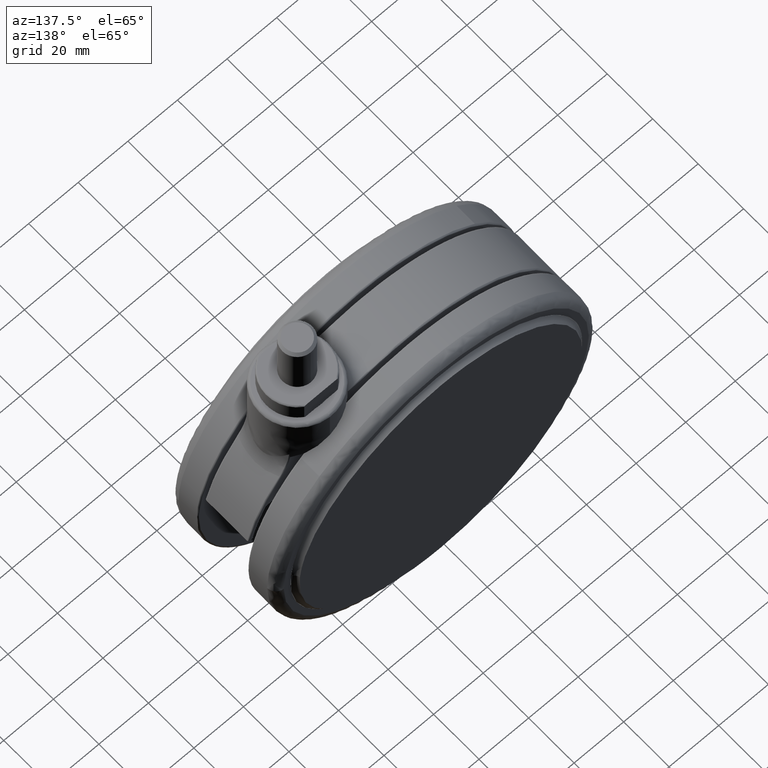
[diagram: clean part render]
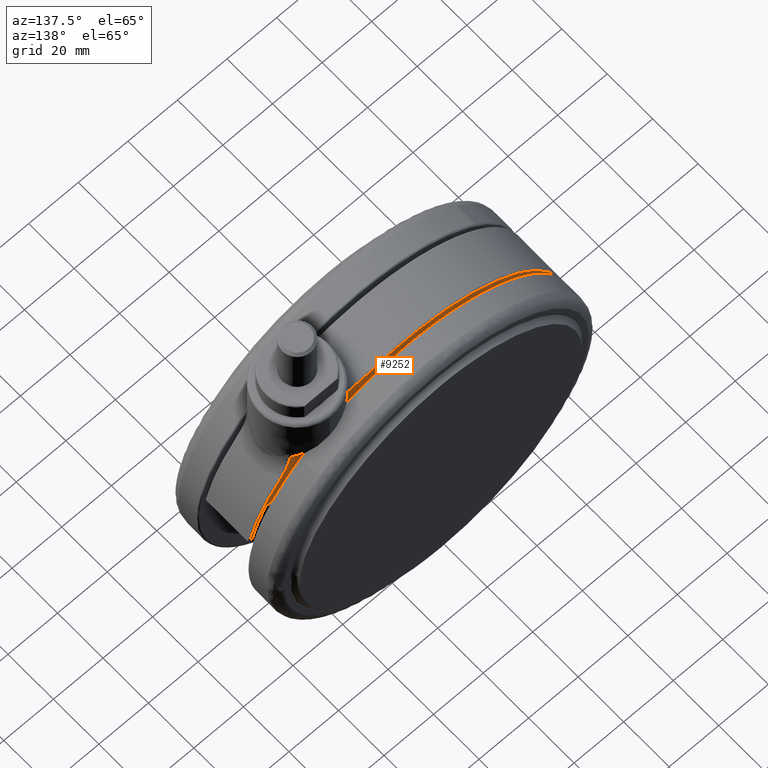
[diagram: same view with one face highlighted and labeled with its STEP entity id]
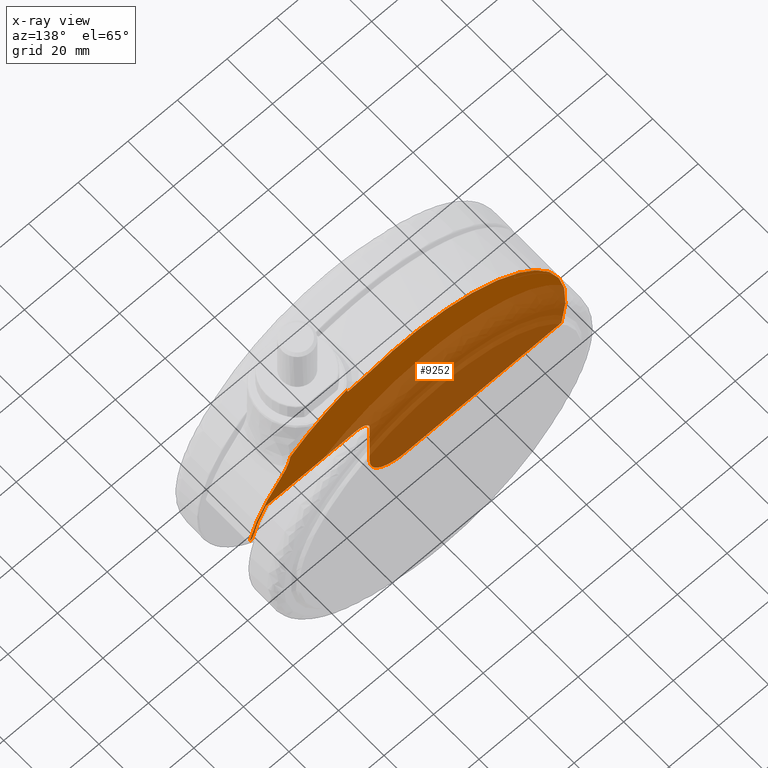
[diagram: x-ray of the same camera — body ghosted, the highlighted face saturated]
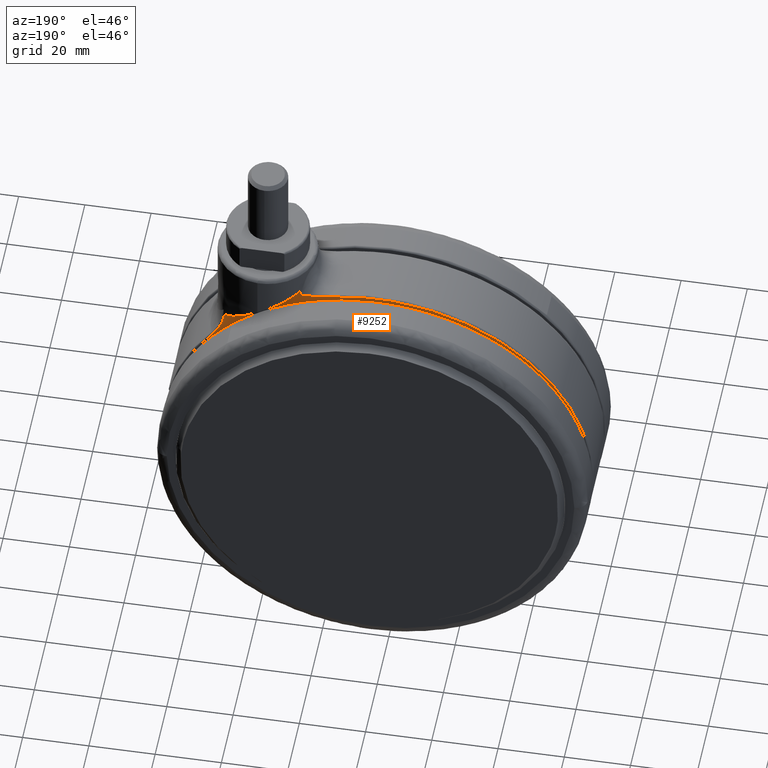
[diagram: same view with one face highlighted and labeled with its STEP entity id]
A machine part, auxiliary view. The second image highlights one B-rep face of the part: STEP entity #9252.
The next image is the same camera in x-ray: the body ghosted, the highlighted face saturated — about 63% of this face is hidden behind the body in this view.
A second angle (auxiliary view) of the same face is appended — the face is thin or edge-on in the first view.
In plain terms, the highlighted face is a freeform B-spline surface patch.
Its self-contained STEP definition (entity closure, byte-faithful):
#7321=CARTESIAN_POINT('',(15.158474518267701,9.500000000000000,-30.949076040115798));
#7322=VERTEX_POINT('',#7321);
#7353=CARTESIAN_POINT('',(27.917485645884000,9.500000000000000,-57.299999999999997));
#7354=VERTEX_POINT('',#7353);
#7368=CARTESIAN_POINT('',(15.158474518267701,9.500000000000000,-30.949076040115798));
#7369=CARTESIAN_POINT('',(24.608355042993942,9.500000000000000,-42.637874844529520));
#7370=CARTESIAN_POINT('',(27.917485645883851,9.500000000000000,-57.300000000000033));
#7378=(BOUNDED_CURVE()B_SPLINE_CURVE(2,(#7368,#7369,#7370),.UNSPECIFIED.,.F.,.U.)CURVE()GEOMETRIC_REPRESENTATION_ITEM()QUASI_UNIFORM_CURVE()RATIONAL_B_SPLINE_CURVE((1.0,0.973904955536458,1.0))REPRESENTATION_ITEM(''));
#7379=EDGE_CURVE('',#7322,#7354,#7378,.T.);
#7501=CARTESIAN_POINT('',(11.471369592054179,9.499999999999821,-21.856370138927851));
#7502=VERTEX_POINT('',#7501);
#7503=CARTESIAN_POINT('',(11.471369592054179,9.499999999999821,-21.856370138927851));
#7504=CARTESIAN_POINT('',(11.518052940971790,9.500000000000002,-22.270704886614080));
#7505=CARTESIAN_POINT('',(11.579497155872350,9.500000000000002,-22.681474332693998));
#7506=CARTESIAN_POINT('',(11.729355376385120,9.500000000000000,-23.496499010968339));
#7507=CARTESIAN_POINT('',(11.817787213753631,9.500000000000000,-23.900749936126282));
#7508=CARTESIAN_POINT('',(12.020733121773929,9.500000000000004,-24.702951950895379));
#7509=CARTESIAN_POINT('',(12.135255648843071,9.499999999999998,-25.100900997965230));
#7510=CARTESIAN_POINT('',(12.326854776433571,9.499999999999998,-25.693038423036960));
#7511=CARTESIAN_POINT('',(12.394032596471940,9.499999999999998,-25.889617727018180));
#7512=CARTESIAN_POINT('',(12.535153737740661,9.500000000000004,-26.281142213222811));
#7513=CARTESIAN_POINT('',(12.609142064457190,9.500000000000002,-26.476166219632610));
#7514=CARTESIAN_POINT('',(12.994003994199860,9.500000000000002,-27.441108569209788));
#7515=CARTESIAN_POINT('',(13.350863923370200,9.500000000000002,-28.185498853078698));
#7516=CARTESIAN_POINT('',(13.965618865448899,9.500000000000004,-29.257356379462621));
#7517=CARTESIAN_POINT('',(14.183860921824779,9.500000000000000,-29.607142786049049));
#7518=CARTESIAN_POINT('',(14.648991593427970,9.499999999999998,-30.290591524171820));
#7519=CARTESIAN_POINT('',(14.895873224664919,9.500000000000002,-30.624257786734749));
#7520=CARTESIAN_POINT('',(15.158474518267649,9.500000000000000,-30.949076040115798));
#7521=B_SPLINE_CURVE_WITH_KNOTS('',3,(#7503,#7504,#7505,#7506,#7507,#7508,#7509,#7510,#7511,#7512,#7513,#7514,#7515,#7516,#7517,#7518,#7519,#7520),.UNSPECIFIED.,.F.,.U.,(4,2,2,2,2,2,2,2,4),(0.0,0.125000000000000,0.249999999999999,0.374999999999999,0.437499999999999,0.499999999999999,0.749999999999999,0.874999999999999,1.0),.UNSPECIFIED.);
#7522=EDGE_CURVE('',#7502,#7322,#7521,.T.);
#7774=CARTESIAN_POINT('',(-20.500000000000000,9.500000000000000,-71.500000000000000));
#7775=VERTEX_POINT('',#7774);
#7789=CARTESIAN_POINT('',(-20.500000000000000,9.500000000000000,-47.799999999999997));
#7790=VERTEX_POINT('',#7789);
#7791=CARTESIAN_POINT('',(-20.500000000000000,9.500000000000000,-47.799999999999997));
#7792=CARTESIAN_POINT('',(-20.500000000000000,9.500000000000000,-71.500000000000000));
#7793=QUASI_UNIFORM_CURVE('',1,(#7791,#7792),.UNSPECIFIED.,.F.,.U.);
#7794=EDGE_CURVE('',#7790,#7775,#7793,.T.);
#7836=CARTESIAN_POINT('',(-35.0,9.500000000000000,-86.0));
#7837=VERTEX_POINT('',#7836);
#7851=CARTESIAN_POINT('',(-20.499999999999812,9.500000000000000,-71.500000000000000));
#7852=CARTESIAN_POINT('',(-20.499999999999812,9.500000000000000,-86.000000000000199));
#7853=CARTESIAN_POINT('',(-35.0,9.500000000000000,-86.000000000000185));
#7861=(BOUNDED_CURVE()B_SPLINE_CURVE(2,(#7851,#7852,#7853),.UNSPECIFIED.,.F.,.U.)CURVE()GEOMETRIC_REPRESENTATION_ITEM()QUASI_UNIFORM_CURVE()RATIONAL_B_SPLINE_CURVE((1.0,0.707106781186547,1.0))REPRESENTATION_ITEM(''));
#7862=EDGE_CURVE('',#7775,#7837,#7861,.T.);
#7883=CARTESIAN_POINT('',(-97.849025449882504,9.500000000000000,-86.0));
#7884=VERTEX_POINT('',#7883);
#7898=CARTESIAN_POINT('',(-35.0,9.500000000000000,-86.0));
#7899=CARTESIAN_POINT('',(-97.849025449882504,9.500000000000000,-86.0));
#7900=QUASI_UNIFORM_CURVE('',1,(#7898,#7899),.UNSPECIFIED.,.F.,.U.);
#7901=EDGE_CURVE('',#7837,#7884,#7900,.T.);
#8077=CARTESIAN_POINT('',(-20.232324865599750,9.500000000000000,-8.713322394961610));
#8078=VERTEX_POINT('',#8077);
#8088=CARTESIAN_POINT('',(-97.849025449882504,9.500000000000000,-86.0));
#8089=CARTESIAN_POINT('',(-98.711168246931194,9.500000000000052,-82.264962558809117));
#8090=CARTESIAN_POINT('',(-99.531605691355608,9.499999999999901,-76.334969202800082));
#8091=CARTESIAN_POINT('',(-99.521742174518167,9.500000000000080,-67.038605452480240));
#8092=CARTESIAN_POINT('',(-98.410653205322717,9.500000000000007,-58.395068831335557));
#8093=CARTESIAN_POINT('',(-95.904762293468394,9.499999999999988,-49.693668626931967));
#8094=CARTESIAN_POINT('',(-92.821633023096780,9.500000000000034,-42.660619883760482));
#8095=CARTESIAN_POINT('',(-88.908074121441359,9.499999999999886,-35.763241115048409));
#8096=CARTESIAN_POINT('',(-84.245381928884157,9.500000000000267,-29.538795886975340));
#8097=CARTESIAN_POINT('',(-78.140686187111541,9.499999999999560,-23.338588335754569));
#8098=CARTESIAN_POINT('',(-72.529846326510352,9.500000000000345,-18.872059442853320));
#8099=CARTESIAN_POINT('',(-66.169757351279202,9.499999999999465,-14.889814745373791));
#8100=CARTESIAN_POINT('',(-60.259498386119709,9.500000000001126,-12.017002141809041));
#8101=CARTESIAN_POINT('',(-54.161713227134378,9.499999999999357,-9.822487199140577));
#8102=CARTESIAN_POINT('',(-48.223264705402379,9.500000000000600,-8.266078468689344));
#8103=CARTESIAN_POINT('',(-41.990571940183052,9.499999999999403,-7.265005568350826));
#8104=CARTESIAN_POINT('',(-35.859553529996042,9.500000000000423,-6.919885999427986));
#8105=CARTESIAN_POINT('',(-28.617222682890350,9.500000000000105,-7.158226443447513));
#8106=CARTESIAN_POINT('',(-23.549078331944830,9.499999999999476,-7.932955224321003));
#8107=CARTESIAN_POINT('',(-20.232324865599750,9.500000000000000,-8.713322394961610));
#8108=B_SPLINE_CURVE_WITH_KNOTS('',3,(#8088,#8089,#8090,#8091,#8092,#8093,#8094,#8095,#8096,#8097,#8098,#8099,#8100,#8101,#8102,#8103,#8104,#8105,#8106,#8107),.UNSPECIFIED.,.F.,.U.,(4,1,1,1,1,1,1,1,1,1,1,1,1,1,1,1,1,4),(0.000000118138274,11.499658482399640,17.888411890701690,27.854871775774601,37.565777746643853,44.976716503575993,50.854358136173389,61.331938577400848,68.231601926417255,76.920348530990168,82.797988408232840,90.720012728807390,96.597667645783645,102.219769763945490,109.119608421911710,115.508336759019700,120.619382113349100,130.841289888979700),.UNSPECIFIED.);
#8109=EDGE_CURVE('',#7884,#8078,#8108,.T.);
#8430=CARTESIAN_POINT('',(-11.368741800479359,9.499999999999861,-7.737614430982780));
#8431=VERTEX_POINT('',#8430);
#8447=CARTESIAN_POINT('',(-20.232324865599750,9.500000000000000,-8.713322394961610));
#8448=CARTESIAN_POINT('',(-19.388149416110728,9.499999999999989,-8.911903553572463));
#8449=CARTESIAN_POINT('',(-18.531733404177881,9.499999999999954,-9.014445277503485));
#8450=CARTESIAN_POINT('',(-17.241777234745069,9.499999999999929,-9.126421810419716));
#8451=CARTESIAN_POINT('',(-16.810903984225270,9.499999999999940,-9.156696111742765));
#8452=CARTESIAN_POINT('',(-16.164860967602461,9.499999999999933,-9.204480516258039));
#8453=CARTESIAN_POINT('',(-15.949546035727179,9.499999999999929,-9.220811198050937));
#8454=CARTESIAN_POINT('',(-15.519160031242970,9.499999999999924,-9.256470845344234));
#8455=CARTESIAN_POINT('',(-15.304071422242910,9.499999999999929,-9.275771577845260));
#8456=CARTESIAN_POINT('',(-14.874286852487300,9.499999999999924,-9.318374584472201));
#8457=CARTESIAN_POINT('',(-14.659642167576139,9.499999999999913,-9.341691056779178));
#8458=CARTESIAN_POINT('',(-14.230862668616380,9.499999999999904,-9.392473331429839));
#8459=CARTESIAN_POINT('',(-14.016734837803810,9.499999999999904,-9.419995963361432));
#8460=CARTESIAN_POINT('',(-13.588773696272989,9.499999999999895,-9.477438032305214));
#8461=CARTESIAN_POINT('',(-13.374967482899430,9.499999999999897,-9.507577987559321));
#8462=CARTESIAN_POINT('',(-13.053825601002160,9.499999999999892,-9.549267731399363));
#8463=CARTESIAN_POINT('',(-12.946667873309130,9.499999999999886,-9.562534778791243));
#8464=CARTESIAN_POINT('',(-12.732175584231230,9.499999999999885,-9.585210652262470));
#8465=CARTESIAN_POINT('',(-12.624832688443600,9.499999999999885,-9.594718764973765));
#8466=CARTESIAN_POINT('',(-12.463447852961540,9.499999999999885,-9.601973946463600));
#8467=CARTESIAN_POINT('',(-12.409589636427549,9.499999999999883,-9.603195709960330));
#8468=CARTESIAN_POINT('',(-12.301672696874549,9.499999999999879,-9.601847124828019));
#8469=CARTESIAN_POINT('',(-12.247419251469781,9.499999999999876,-9.599276398279914));
#8470=CARTESIAN_POINT('',(-12.139506316800290,9.499999999999872,-9.588093636166409));
#8471=CARTESIAN_POINT('',(-12.086162465442220,9.499999999999883,-9.579533564126246));
#8472=CARTESIAN_POINT('',(-11.981353973728529,9.499999999999881,-9.553306904755145));
#8473=CARTESIAN_POINT('',(-11.929350211896860,9.499999999999872,-9.535297298347684));
#8474=CARTESIAN_POINT('',(-11.856613520968780,9.499999999999872,-9.499691009201943));
#8475=CARTESIAN_POINT('',(-11.833175360785360,9.499999999999874,-9.486401358578673));
#8476=CARTESIAN_POINT('',(-11.788040854050580,9.499999999999876,-9.456756772784711));
#8477=CARTESIAN_POINT('',(-11.766225004438850,9.499999999999874,-9.440294428538945));
#8478=CARTESIAN_POINT('',(-11.704376389874311,9.499999999999872,-9.386825483211831));
#8479=CARTESIAN_POINT('',(-11.668597296263840,9.499999999999872,-9.346440441005100));
#8480=CARTESIAN_POINT('',(-11.621462398973680,9.499999999999874,-9.280184878836693));
#8481=CARTESIAN_POINT('',(-11.606794115193310,9.499999999999876,-9.257056749719801));
#8482=CARTESIAN_POINT('',(-11.579849333050729,9.499999999999874,-9.210022936658845));
#8483=CARTESIAN_POINT('',(-11.567500226267541,9.499999999999870,-9.186034302997426));
#8484=CARTESIAN_POINT('',(-11.533201878499570,9.499999999999867,-9.112913961447555));
#8485=CARTESIAN_POINT('',(-11.513969039743920,9.499999999999869,-9.062641491025898));
#8486=CARTESIAN_POINT('',(-11.480558614361160,9.499999999999867,-8.959973579525906));
#8487=CARTESIAN_POINT('',(-11.466381619864700,9.499999999999863,-8.907434333561177));
#8488=CARTESIAN_POINT('',(-11.442102116032940,9.499999999999863,-8.802452268410207));
#8489=CARTESIAN_POINT('',(-11.431927995461059,9.499999999999861,-8.749787019765803));
#8490=CARTESIAN_POINT('',(-11.405711125497991,9.499999999999858,-8.591409673360971));
#8491=CARTESIAN_POINT('',(-11.393891979885399,9.499999999999879,-8.485323232950144));
#8492=CARTESIAN_POINT('',(-11.377232776928370,9.499999999999877,-8.272531787855808));
#8493=CARTESIAN_POINT('',(-11.372465074591149,9.499999999999856,-8.165820370268387));
#8494=CARTESIAN_POINT('',(-11.367975491684810,9.499999999999856,-7.951950318357997));
#8495=CARTESIAN_POINT('',(-11.368694112882830,9.499999999999861,-7.844752641878699));
#8496=CARTESIAN_POINT('',(-11.368741800479359,9.499999999999861,-7.737614430982780));
#8497=B_SPLINE_CURVE_WITH_KNOTS('',3,(#8447,#8448,#8449,#8450,#8451,#8452,#8453,#8454,#8455,#8456,#8457,#8458,#8459,#8460,#8461,#8462,#8463,#8464,#8465,#8466,#8467,#8468,#8469,#8470,#8471,#8472,#8473,#8474,#8475,#8476,#8477,#8478,#8479,#8480,#8481,#8482,#8483,#8484,#8485,#8486,#8487,#8488,#8489,#8490,#8491,#8492,#8493,#8494,#8495,#8496),.UNSPECIFIED.,.F.,.U.,(4,2,2,2,2,2,2,2,2,2,2,2,2,2,2,2,2,2,2,2,2,2,2,2,4),(0.0,0.249999999999996,0.374999999999994,0.437499999999993,0.499999999999992,0.562499999999991,0.624999999999990,0.687499999999989,0.718749999999989,0.749999999999988,0.765624999999988,0.781249999999988,0.796874999999989,0.812499999999989,0.820312499999989,0.828124999999989,0.843749999999989,0.851562499999990,0.859374999999990,0.874999999999991,0.890624999999992,0.906249999999993,0.937499999999995,0.968749999999998,1.0),.UNSPECIFIED.);
#8498=EDGE_CURVE('',#8078,#8431,#8497,.T.);
#9086=CARTESIAN_POINT('',(11.471369592054179,9.499999999999821,-21.856370138927851));
#9087=CARTESIAN_POINT('',(1.473081303232503,9.500000000000000,-12.496978981230173));
#9088=CARTESIAN_POINT('',(-11.368741800479370,9.500000000000000,-7.737614430982809));
#9096=(BOUNDED_CURVE()B_SPLINE_CURVE(2,(#9086,#9087,#9088),.UNSPECIFIED.,.F.,.U.)CURVE()GEOMETRIC_REPRESENTATION_ITEM()QUASI_UNIFORM_CURVE()RATIONAL_B_SPLINE_CURVE((1.0,0.980315622466443,1.0))REPRESENTATION_ITEM(''));
#9097=EDGE_CURVE('',#7502,#8431,#9096,.T.);
#9195=CARTESIAN_POINT('',(-105.845178767666200,9.500000000000000,-3.080773728028876));
#9196=CARTESIAN_POINT('',(34.281072891302301,9.500000000000000,-3.080773728028876));
#9197=CARTESIAN_POINT('',(-105.845178767666200,9.500000000000000,-89.944775868645266));
#9198=CARTESIAN_POINT('',(34.281072891302301,9.500000000000000,-89.944775868645266));
#9199=B_SPLINE_SURFACE_WITH_KNOTS('',1,1,((#9195,#9197),(#9196,#9198)),.UNSPECIFIED.,.F.,.F.,.U.,(2,2),(2,2),(0.0,140.126251658968500),(0.0,86.864002140616392),.UNSPECIFIED.);
#9200=ORIENTED_EDGE('',*,*,#9097,.F.);
#9201=ORIENTED_EDGE('',*,*,#7522,.T.);
#9202=ORIENTED_EDGE('',*,*,#7379,.T.);
#9203=CARTESIAN_POINT('',(26.891921928471550,9.500000000000000,-57.299999999999997));
#9204=VERTEX_POINT('',#9203);
#9205=CARTESIAN_POINT('',(27.917485645884000,9.500000000000000,-57.299999999999997));
#9206=CARTESIAN_POINT('',(26.891921928471550,9.500000000000000,-57.299999999999997));
#9207=QUASI_UNIFORM_CURVE('',1,(#9205,#9206),.UNSPECIFIED.,.F.,.U.);
#9208=EDGE_CURVE('',#7354,#9204,#9207,.T.);
#9209=ORIENTED_EDGE('',*,*,#9208,.T.);
#9210=CARTESIAN_POINT('',(21.388030644809898,9.500000000000000,-42.299999999999997));
#9211=VERTEX_POINT('',#9210);
#9212=CARTESIAN_POINT('',(26.891921928471419,9.500000000000000,-57.300000000000061));
#9213=CARTESIAN_POINT('',(25.091109572987662,9.500000000000000,-49.451004386378358));
#9214=CARTESIAN_POINT('',(21.388030644809760,9.500000000000000,-42.300000000000082));
#9222=(BOUNDED_CURVE()B_SPLINE_CURVE(2,(#9212,#9213,#9214),.UNSPECIFIED.,.F.,.U.)CURVE()GEOMETRIC_REPRESENTATION_ITEM()QUASI_UNIFORM_CURVE()RATIONAL_B_SPLINE_CURVE((1.0,0.992054340018409,1.0))REPRESENTATION_ITEM(''));
#9223=EDGE_CURVE('',#9204,#9211,#9222,.T.);
#9224=ORIENTED_EDGE('',*,*,#9223,.T.);
#9225=CARTESIAN_POINT('',(-14.999999999999799,9.500000000000000,-42.299999999999997));
#9226=VERTEX_POINT('',#9225);
#9227=CARTESIAN_POINT('',(21.388030644809898,9.500000000000000,-42.299999999999997));
#9228=CARTESIAN_POINT('',(-14.999999999999799,9.500000000000000,-42.299999999999997));
#9229=QUASI_UNIFORM_CURVE('',1,(#9227,#9228),.UNSPECIFIED.,.F.,.U.);
#9230=EDGE_CURVE('',#9211,#9226,#9229,.T.);
#9231=ORIENTED_EDGE('',*,*,#9230,.T.);
#9232=CARTESIAN_POINT('',(-14.999999999999799,9.500000000000000,-42.299999999999997));
#9233=CARTESIAN_POINT('',(-20.499999999999794,9.500000000000000,-42.300000000000011));
#9234=CARTESIAN_POINT('',(-20.499999999999801,9.500000000000000,-47.799999999999997));
#9242=(BOUNDED_CURVE()B_SPLINE_CURVE(2,(#9232,#9233,#9234),.UNSPECIFIED.,.F.,.U.)CURVE()GEOMETRIC_REPRESENTATION_ITEM()QUASI_UNIFORM_CURVE()RATIONAL_B_SPLINE_CURVE((1.0,0.707106781186548,1.0))REPRESENTATION_ITEM(''));
#9243=EDGE_CURVE('',#9226,#7790,#9242,.T.);
#9244=ORIENTED_EDGE('',*,*,#9243,.T.);
#9245=ORIENTED_EDGE('',*,*,#7794,.T.);
#9246=ORIENTED_EDGE('',*,*,#7862,.T.);
#9247=ORIENTED_EDGE('',*,*,#7901,.T.);
#9248=ORIENTED_EDGE('',*,*,#8109,.T.);
#9249=ORIENTED_EDGE('',*,*,#8498,.T.);
#9250=EDGE_LOOP('',(#9200,#9201,#9202,#9209,#9224,#9231,#9244,#9245,#9246,#9247,#9248,#9249));
#9251=FACE_OUTER_BOUND('',#9250,.T.);
#9252=ADVANCED_FACE('',(#9251),#9199,.T.);